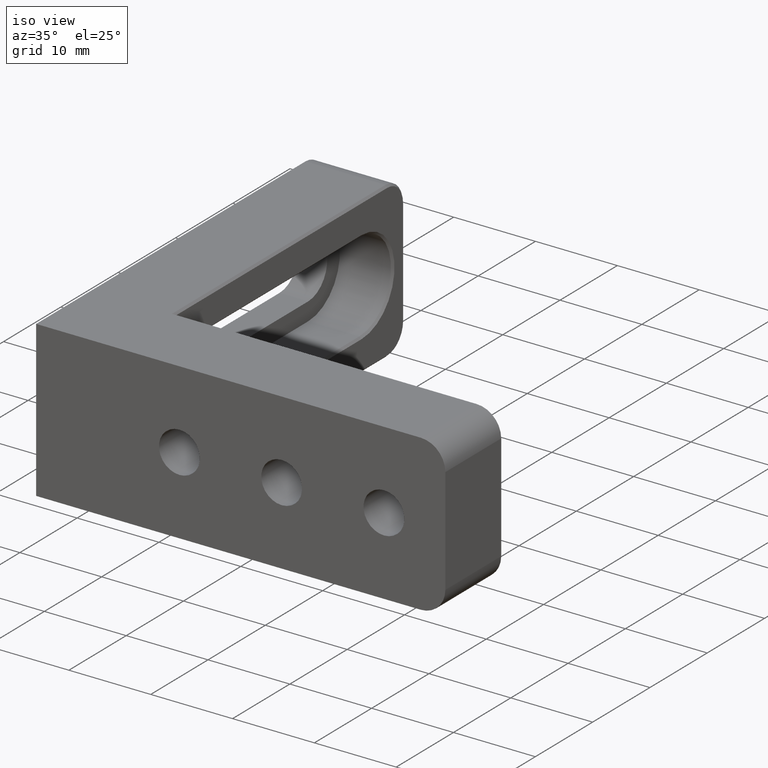
[diagram: clean part render]
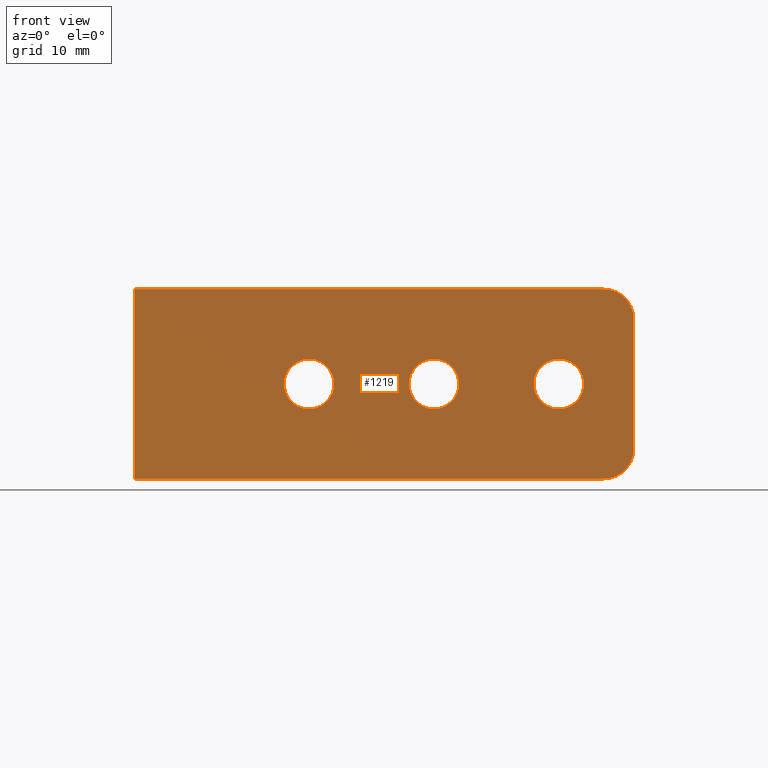
[diagram: tour spotlight — one face highlighted and labeled with its STEP entity id]
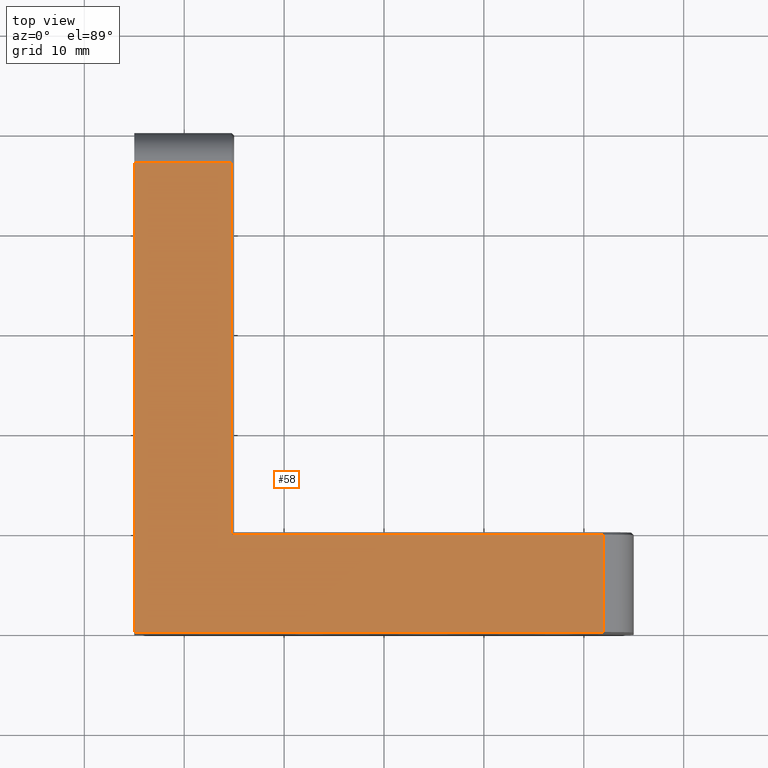
[diagram: tour spotlight — one face highlighted and labeled with its STEP entity id]
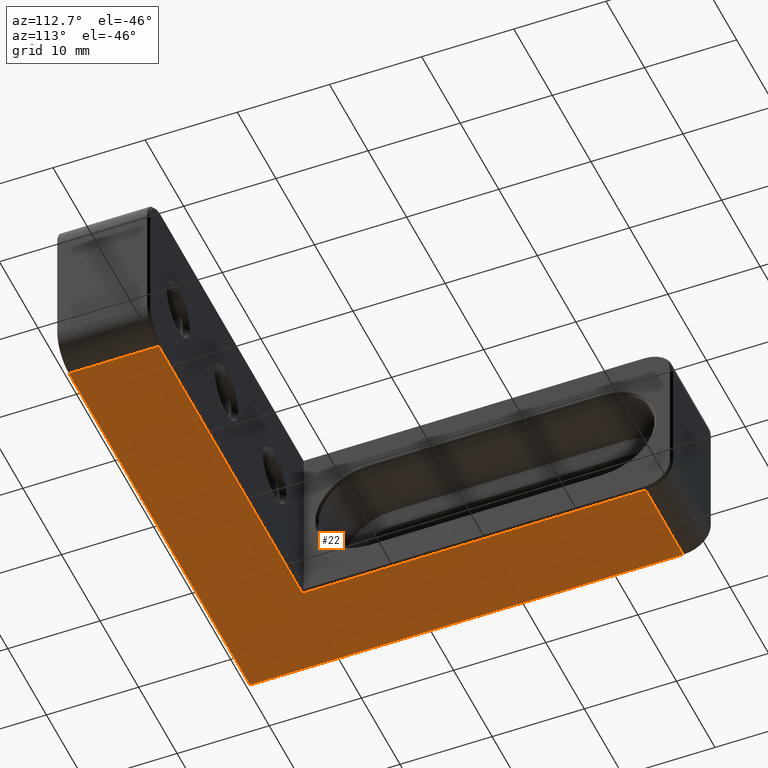
[diagram: tour spotlight — one face highlighted and labeled with its STEP entity id]
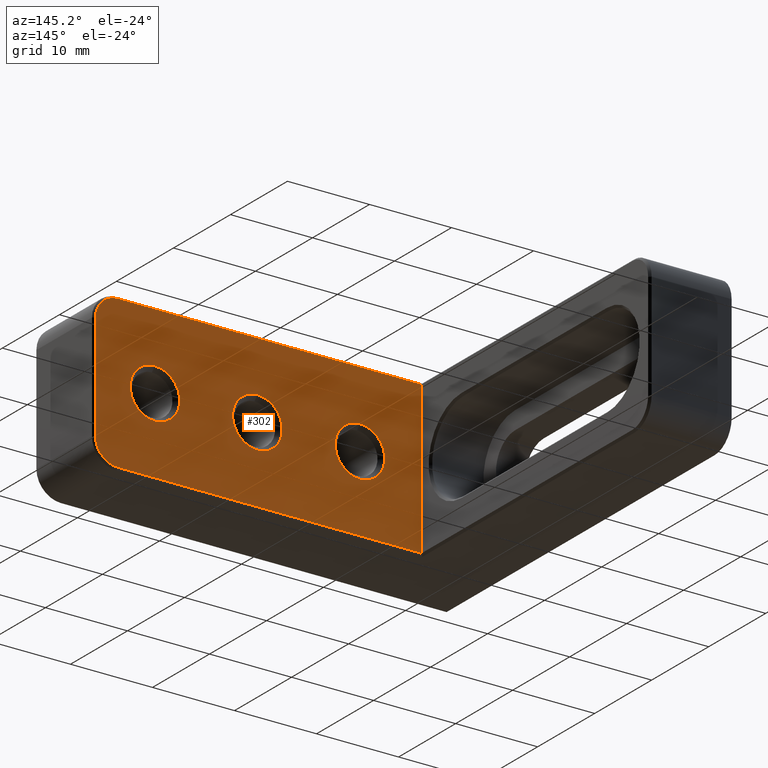
[diagram: tour spotlight — one face highlighted and labeled with its STEP entity id]
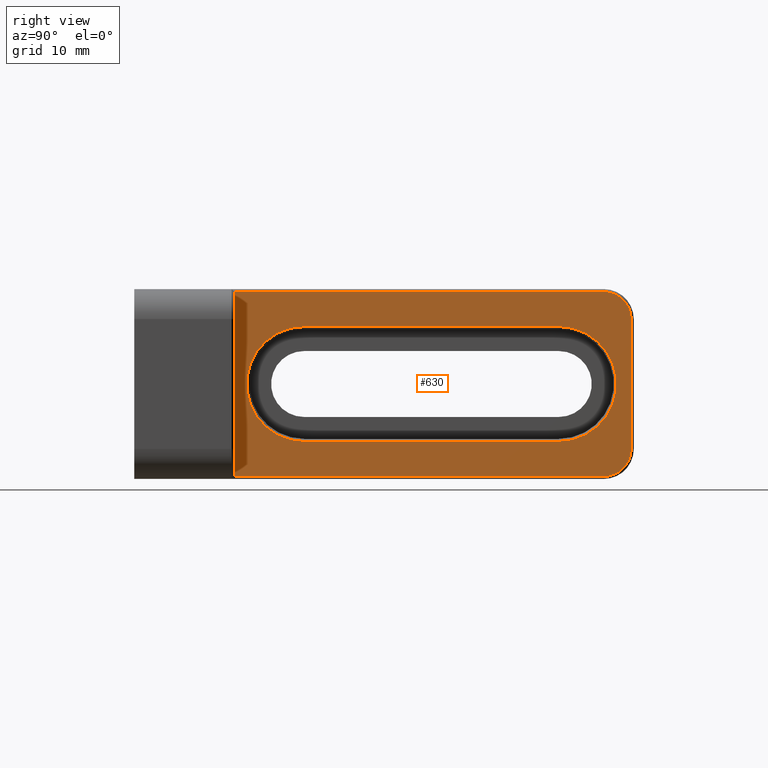
[diagram: tour spotlight — one face highlighted and labeled with its STEP entity id]
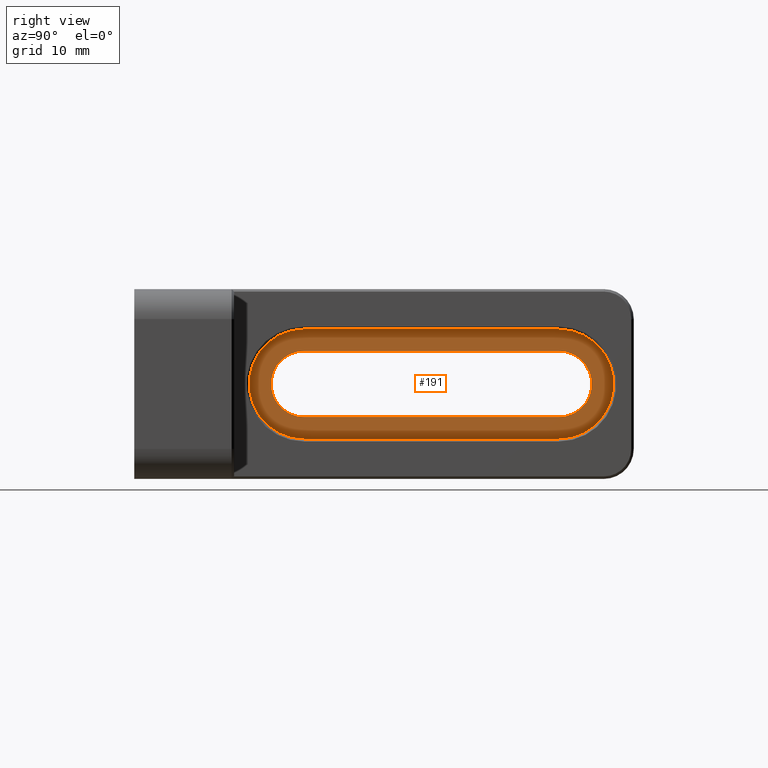
[diagram: tour spotlight — one face highlighted and labeled with its STEP entity id]
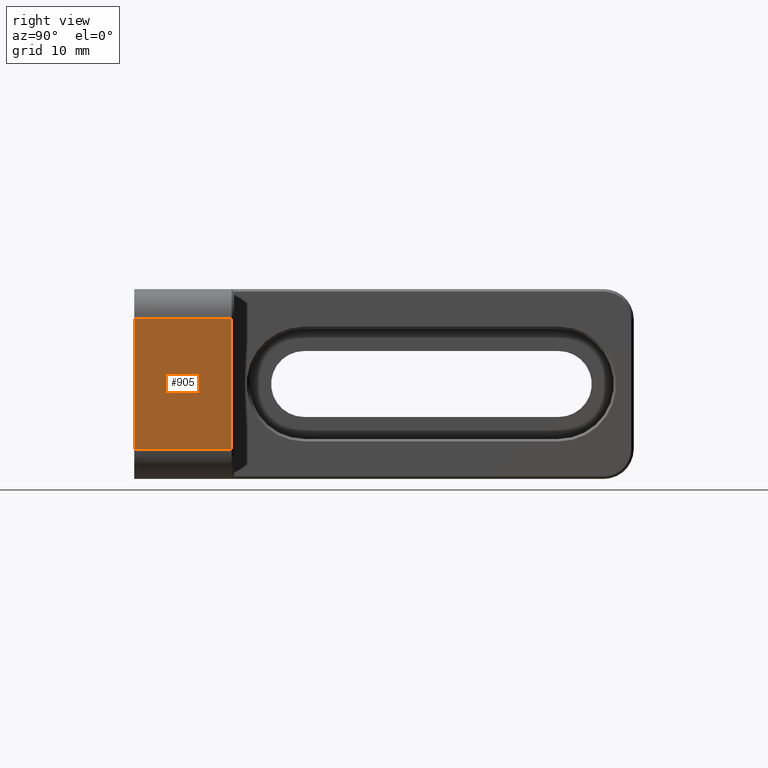
[diagram: tour spotlight — one face highlighted and labeled with its STEP entity id]
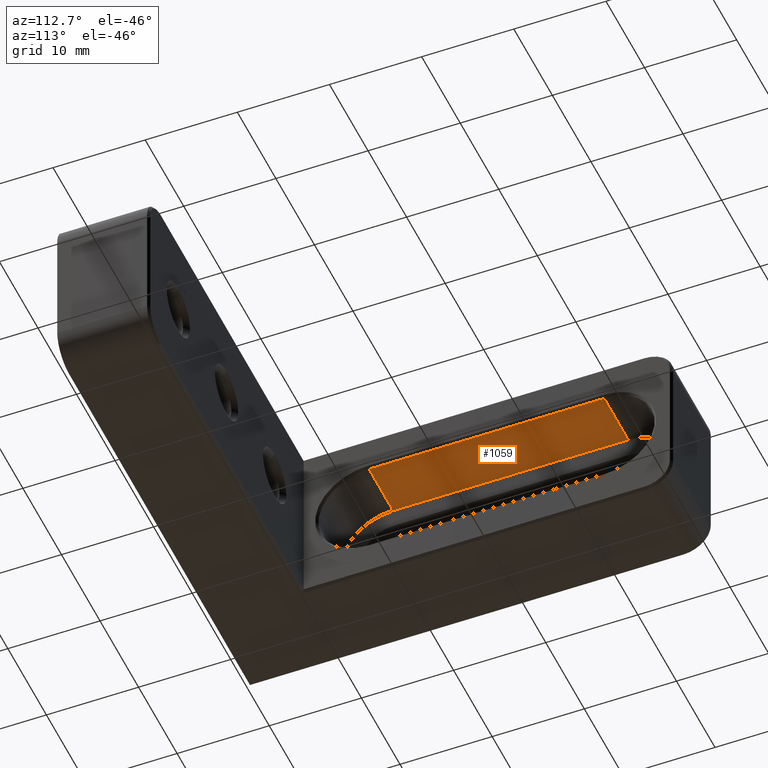
[diagram: tour spotlight — one face highlighted and labeled with its STEP entity id]
A machine part: a face-by-face anatomy tour. The part has 41 B-rep faces; the first image is the clean iso view, then the 8 largest visible faces are spotlighted one at a time (largest first), each with its STEP entity span.

Face 1 — front view, entity #1219. In plain terms, the highlighted planar face has unit normal (0, 1, 0).
Definition (entity closure, byte-faithful):
#7 = ORIENTED_EDGE ( 'NONE', *, *, #248, .T. ) ;
#13 = LINE ( 'NONE', #781, #537 ) ;
#30 = DIRECTION ( 'NONE',  ( 2.312964634635743450E-15, 0.000000000000000000, 1.000000000000000000 ) ) ;
#45 = EDGE_LOOP ( 'NONE', ( #935 ) ) ;
#68 = VERTEX_POINT ( 'NONE', #738 ) ;
#82 = DIRECTION ( 'NONE',  ( -0.000000000000000000, 1.000000000000000000, -0.000000000000000000 ) ) ;
#89 = CARTESIAN_POINT ( 'NONE',  ( -7.499999999999989342, -1.734723475976807094E-15, 0.000000000000000000 ) ) ;
#103 = CIRCLE ( 'NONE', #799, 2.499999999999998668 ) ;
#106 = ORIENTED_EDGE ( 'NONE', *, *, #746, .T. ) ;
#108 = DIRECTION ( 'NONE',  ( -1.000000000000000000, -0.000000000000000000, -0.000000000000000000 ) ) ;
#110 = VERTEX_POINT ( 'NONE', #1193 ) ;
#123 = EDGE_CURVE ( 'NONE', #1017, #1017, #103, .T. ) ;
#134 = CIRCLE ( 'NONE', #803, 2.999999999999999112 ) ;
#139 = AXIS2_PLACEMENT_3D ( 'NONE', #632, #153, #907 ) ;
#153 = DIRECTION ( 'NONE',  ( -0.000000000000000000, -1.000000000000000000, -0.000000000000000000 ) ) ;
#160 = FACE_BOUND ( 'NONE', #691, .T. ) ;
#166 = CARTESIAN_POINT ( 'NONE',  ( -24.99999999999999289, 0.000000000000000000, -9.499999999999998224 ) ) ;
#171 = ORIENTED_EDGE ( 'NONE', *, *, #296, .F. ) ;
#206 = DIRECTION ( 'NONE',  ( -0.000000000000000000, 1.000000000000000000, -0.000000000000000000 ) ) ;
#208 = VERTEX_POINT ( 'NONE', #679 ) ;
#210 = LINE ( 'NONE', #580, #817 ) ;
#213 = CIRCLE ( 'NONE', #895, 2.499999999999998668 ) ;
#232 = LINE ( 'NONE', #601, #480 ) ;
#248 = EDGE_CURVE ( 'NONE', #447, #447, #213, .T. ) ;
#296 = EDGE_CURVE ( 'NONE', #68, #680, #13, .T. ) ;
#329 = ORIENTED_EDGE ( 'NONE', *, *, #336, .F. ) ;
#336 = EDGE_CURVE ( 'NONE', #649, #1119, #232, .T. ) ;
#416 = LINE ( 'NONE', #705, #1159 ) ;
#421 = CARTESIAN_POINT ( 'NONE',  ( 0.000000000000000000, 0.000000000000000000, 0.000000000000000000 ) ) ;
#432 = AXIS2_PLACEMENT_3D ( 'NONE', #1133, #206, #574 ) ;
#447 = VERTEX_POINT ( 'NONE', #1199 ) ;
#451 = EDGE_LOOP ( 'NONE', ( #835, #106, #171, #1018, #539, #329 ) ) ;
#463 = DIRECTION ( 'NONE',  ( 0.000000000000000000, 0.000000000000000000, 1.000000000000000000 ) ) ;
#480 = VECTOR ( 'NONE', #802, 1000.000000000000000 ) ;
#492 = DIRECTION ( 'NONE',  ( 1.000000000000000000, 0.000000000000000000, 0.000000000000000000 ) ) ;
#517 = FACE_OUTER_BOUND ( 'NONE', #451, .T. ) ;
#528 = EDGE_CURVE ( 'NONE', #1119, #110, #416, .T. ) ;
#532 = DIRECTION ( 'NONE',  ( 0.000000000000000000, -0.000000000000000000, 1.000000000000000000 ) ) ;
#537 = VECTOR ( 'NONE', #579, 1000.000000000000000 ) ;
#539 = ORIENTED_EDGE ( 'NONE', *, *, #528, .F. ) ;
#574 = DIRECTION ( 'NONE',  ( 0.000000000000000000, 0.000000000000000000, 1.000000000000000000 ) ) ;
#579 = DIRECTION ( 'NONE',  ( -1.826024711554533420E-16, -0.000000000000000000, -1.000000000000000000 ) ) ;
#580 = CARTESIAN_POINT ( 'NONE',  ( -24.99999999999999289, 0.000000000000000000, -9.499999999999998224 ) ) ;
#601 = CARTESIAN_POINT ( 'NONE',  ( -24.99999999999999289, 0.000000000000000000, -9.499999999999998224 ) ) ;
#607 = CARTESIAN_POINT ( 'NONE',  ( 5.000000000000011546, -1.734723475976807094E-15, 2.499999999999998668 ) ) ;
#615 = FACE_BOUND ( 'NONE', #773, .T. ) ;
#632 = CARTESIAN_POINT ( 'NONE',  ( 22.00000000000000711, 0.000000000000000000, -6.499999999999998224 ) ) ;
#637 = DIRECTION ( 'NONE',  ( 0.000000000000000000, 1.000000000000000000, 0.000000000000000000 ) ) ;
#649 = VERTEX_POINT ( 'NONE', #166 ) ;
#679 = CARTESIAN_POINT ( 'NONE',  ( 22.00000000000000711, 0.000000000000000000, -9.499999999999998224 ) ) ;
#680 = VERTEX_POINT ( 'NONE', #944 ) ;
#684 = ORIENTED_EDGE ( 'NONE', *, *, #123, .T. ) ;
#691 = EDGE_LOOP ( 'NONE', ( #7 ) ) ;
#705 = CARTESIAN_POINT ( 'NONE',  ( -24.99999999999998934, 0.000000000000000000, 9.500000000000005329 ) ) ;
#728 = CARTESIAN_POINT ( 'NONE',  ( 5.000000000000011546, -1.734723475976807094E-15, 0.000000000000000000 ) ) ;
#732 = DIRECTION ( 'NONE',  ( -0.000000000000000000, 1.000000000000000000, -0.000000000000000000 ) ) ;
#738 = CARTESIAN_POINT ( 'NONE',  ( 25.00000000000001066, 0.000000000000000000, 6.500000000000005329 ) ) ;
#746 = EDGE_CURVE ( 'NONE', #208, #680, #982, .T. ) ;
#773 = EDGE_LOOP ( 'NONE', ( #684 ) ) ;
#778 = CARTESIAN_POINT ( 'NONE',  ( -24.99999999999998934, 0.000000000000000000, 9.500000000000005329 ) ) ;
#781 = CARTESIAN_POINT ( 'NONE',  ( 25.00000000000000711, 0.000000000000000000, -9.499999999999998224 ) ) ;
#794 = CARTESIAN_POINT ( 'NONE',  ( 22.00000000000001421, 0.000000000000000000, 6.500000000000005329 ) ) ;
#799 = AXIS2_PLACEMENT_3D ( 'NONE', #728, #732, #1011 ) ;
#802 = DIRECTION ( 'NONE',  ( 1.826024711554533420E-16, 0.000000000000000000, 1.000000000000000000 ) ) ;
#803 = AXIS2_PLACEMENT_3D ( 'NONE', #794, #1070, #30 ) ;
#808 = CIRCLE ( 'NONE', #432, 2.499999999999998668 ) ;
#817 = VECTOR ( 'NONE', #108, 1000.000000000000000 ) ;
#835 = ORIENTED_EDGE ( 'NONE', *, *, #1000, .F. ) ;
#895 = AXIS2_PLACEMENT_3D ( 'NONE', #89, #82, #463 ) ;
#899 = PLANE ( 'NONE',  #1022 ) ;
#907 = DIRECTION ( 'NONE',  ( -1.156482317317871331E-15, 0.000000000000000000, 1.000000000000000000 ) ) ;
#935 = ORIENTED_EDGE ( 'NONE', *, *, #959, .T. ) ;
#944 = CARTESIAN_POINT ( 'NONE',  ( 25.00000000000000711, 0.000000000000000000, -6.499999999999999112 ) ) ;
#959 = EDGE_CURVE ( 'NONE', #988, #988, #808, .T. ) ;
#982 = CIRCLE ( 'NONE', #139, 3.000000000000000000 ) ;
#988 = VERTEX_POINT ( 'NONE', #1097 ) ;
#1000 = EDGE_CURVE ( 'NONE', #208, #649, #210, .T. ) ;
#1011 = DIRECTION ( 'NONE',  ( 0.000000000000000000, 0.000000000000000000, 1.000000000000000000 ) ) ;
#1017 = VERTEX_POINT ( 'NONE', #607 ) ;
#1018 = ORIENTED_EDGE ( 'NONE', *, *, #1154, .T. ) ;
#1022 = AXIS2_PLACEMENT_3D ( 'NONE', #421, #637, #532 ) ;
#1070 = DIRECTION ( 'NONE',  ( -0.000000000000000000, -1.000000000000000000, -0.000000000000000000 ) ) ;
#1097 = CARTESIAN_POINT ( 'NONE',  ( 17.50000000000001066, -1.734723475976807094E-15, 2.499999999999998668 ) ) ;
#1119 = VERTEX_POINT ( 'NONE', #778 ) ;
#1133 = CARTESIAN_POINT ( 'NONE',  ( 17.50000000000001066, -1.734723475976807094E-15, 0.000000000000000000 ) ) ;
#1154 = EDGE_CURVE ( 'NONE', #68, #110, #134, .T. ) ;
#1159 = VECTOR ( 'NONE', #492, 1000.000000000000000 ) ;
#1179 = FACE_BOUND ( 'NONE', #45, .T. ) ;
#1193 = CARTESIAN_POINT ( 'NONE',  ( 22.00000000000001066, 0.000000000000000000, 9.500000000000005329 ) ) ;
#1199 = CARTESIAN_POINT ( 'NONE',  ( -7.499999999999989342, -1.734723475976807094E-15, 2.499999999999998668 ) ) ;
#1219 = ADVANCED_FACE ( 'NONE', ( #160, #615, #1179, #517 ), #899, .F. ) ;

Face 2 — top view, entity #58. In plain terms, the highlighted planar face has unit normal (0, 0, -1).
Definition (entity closure, byte-faithful):
#6 = VECTOR ( 'NONE', #708, 1000.000000000000000 ) ;
#21 = DIRECTION ( 'NONE',  ( -1.000000000000000000, 0.000000000000000000, 0.000000000000000000 ) ) ;
#58 = ADVANCED_FACE ( 'NONE', ( #509 ), #633, .F. ) ;
#84 = VECTOR ( 'NONE', #21, 1000.000000000000000 ) ;
#110 = VERTEX_POINT ( 'NONE', #1193 ) ;
#117 = VERTEX_POINT ( 'NONE', #245 ) ;
#125 = LINE ( 'NONE', #398, #84 ) ;
#193 = ORIENTED_EDGE ( 'NONE', *, *, #523, .T. ) ;
#212 = ORIENTED_EDGE ( 'NONE', *, *, #503, .T. ) ;
#245 = CARTESIAN_POINT ( 'NONE',  ( -15.25000000000000000, 47.00000000000000000, 9.500000000000005329 ) ) ;
#250 = DIRECTION ( 'NONE',  ( -0.000000000000000000, 1.000000000000000000, -0.000000000000000000 ) ) ;
#264 = ORIENTED_EDGE ( 'NONE', *, *, #555, .T. ) ;
#303 = VECTOR ( 'NONE', #766, 1000.000000000000000 ) ;
#319 = CARTESIAN_POINT ( 'NONE',  ( -24.99999999999999289, 47.00000000000000000, 9.500000000000005329 ) ) ;
#341 = LINE ( 'NONE', #726, #955 ) ;
#348 = CARTESIAN_POINT ( 'NONE',  ( -24.99999999999998934, 10.00000000000000000, 9.500000000000005329 ) ) ;
#398 = CARTESIAN_POINT ( 'NONE',  ( -14.99999999999999289, 9.750000000000000000, 9.500000000000005329 ) ) ;
#416 = LINE ( 'NONE', #705, #1159 ) ;
#419 = DIRECTION ( 'NONE',  ( -1.000000000000000000, -0.000000000000000000, -0.000000000000000000 ) ) ;
#450 = DIRECTION ( 'NONE',  ( -1.000000000000000000, 0.000000000000000000, -0.000000000000000000 ) ) ;
#472 = ORIENTED_EDGE ( 'NONE', *, *, #528, .T. ) ;
#478 = AXIS2_PLACEMENT_3D ( 'NONE', #348, #749, #450 ) ;
#484 = CARTESIAN_POINT ( 'NONE',  ( 22.00000000000001066, 9.750000000000000000, 9.500000000000005329 ) ) ;
#492 = DIRECTION ( 'NONE',  ( 1.000000000000000000, 0.000000000000000000, 0.000000000000000000 ) ) ;
#498 = VECTOR ( 'NONE', #419, 1000.000000000000000 ) ;
#503 = EDGE_CURVE ( 'NONE', #941, #117, #547, .T. ) ;
#509 = FACE_OUTER_BOUND ( 'NONE', #795, .T. ) ;
#523 = EDGE_CURVE ( 'NONE', #110, #1004, #341, .T. ) ;
#528 = EDGE_CURVE ( 'NONE', #1119, #110, #416, .T. ) ;
#547 = LINE ( 'NONE', #1030, #303 ) ;
#555 = EDGE_CURVE ( 'NONE', #1004, #941, #125, .T. ) ;
#561 = ORIENTED_EDGE ( 'NONE', *, *, #1224, .T. ) ;
#592 = EDGE_CURVE ( 'NONE', #117, #845, #707, .T. ) ;
#622 = CARTESIAN_POINT ( 'NONE',  ( -24.99999999999998934, 10.00000000000000000, 9.500000000000005329 ) ) ;
#623 = CARTESIAN_POINT ( 'NONE',  ( -24.99999999999998934, 47.00000000000000000, 9.500000000000005329 ) ) ;
#633 = PLANE ( 'NONE',  #478 ) ;
#705 = CARTESIAN_POINT ( 'NONE',  ( -24.99999999999998934, 0.000000000000000000, 9.500000000000005329 ) ) ;
#707 = LINE ( 'NONE', #319, #498 ) ;
#708 = DIRECTION ( 'NONE',  ( -0.000000000000000000, -1.000000000000000000, -0.000000000000000000 ) ) ;
#726 = CARTESIAN_POINT ( 'NONE',  ( 22.00000000000001066, 10.00000000000000000, 9.500000000000005329 ) ) ;
#749 = DIRECTION ( 'NONE',  ( 0.000000000000000000, 0.000000000000000000, -1.000000000000000000 ) ) ;
#766 = DIRECTION ( 'NONE',  ( 0.000000000000000000, 1.000000000000000000, 0.000000000000000000 ) ) ;
#778 = CARTESIAN_POINT ( 'NONE',  ( -24.99999999999998934, 0.000000000000000000, 9.500000000000005329 ) ) ;
#795 = EDGE_LOOP ( 'NONE', ( #193, #264, #212, #1206, #561, #472 ) ) ;
#845 = VERTEX_POINT ( 'NONE', #623 ) ;
#941 = VERTEX_POINT ( 'NONE', #950 ) ;
#950 = CARTESIAN_POINT ( 'NONE',  ( -15.25000000000000000, 9.750000000000000000, 9.500000000000005329 ) ) ;
#955 = VECTOR ( 'NONE', #250, 1000.000000000000000 ) ;
#1004 = VERTEX_POINT ( 'NONE', #484 ) ;
#1030 = CARTESIAN_POINT ( 'NONE',  ( -15.25000000000000000, 10.00000000000000000, 9.500000000000005329 ) ) ;
#1119 = VERTEX_POINT ( 'NONE', #778 ) ;
#1159 = VECTOR ( 'NONE', #492, 1000.000000000000000 ) ;
#1193 = CARTESIAN_POINT ( 'NONE',  ( 22.00000000000001066, 0.000000000000000000, 9.500000000000005329 ) ) ;
#1194 = LINE ( 'NONE', #622, #6 ) ;
#1206 = ORIENTED_EDGE ( 'NONE', *, *, #592, .T. ) ;
#1224 = EDGE_CURVE ( 'NONE', #845, #1119, #1194, .T. ) ;

Face 3 — auxiliary view, entity #22. In plain terms, the highlighted planar face has unit normal (0, 0, 1).
Definition (entity closure, byte-faithful):
#22 = ADVANCED_FACE ( 'NONE', ( #1024 ), #999, .F. ) ;
#53 = CARTESIAN_POINT ( 'NONE',  ( -15.25000000000000178, 47.00000000000000000, -9.499999999999998224 ) ) ;
#55 = VERTEX_POINT ( 'NONE', #138 ) ;
#71 = ORIENTED_EDGE ( 'NONE', *, *, #519, .T. ) ;
#93 = VECTOR ( 'NONE', #965, 1000.000000000000000 ) ;
#108 = DIRECTION ( 'NONE',  ( -1.000000000000000000, -0.000000000000000000, -0.000000000000000000 ) ) ;
#138 = CARTESIAN_POINT ( 'NONE',  ( 22.00000000000000711, 9.750000000000000000, -9.499999999999998224 ) ) ;
#146 = ORIENTED_EDGE ( 'NONE', *, *, #791, .T. ) ;
#166 = CARTESIAN_POINT ( 'NONE',  ( -24.99999999999999289, 0.000000000000000000, -9.499999999999998224 ) ) ;
#182 = DIRECTION ( 'NONE',  ( 1.000000000000000000, 0.000000000000000000, -0.000000000000000000 ) ) ;
#208 = VERTEX_POINT ( 'NONE', #679 ) ;
#210 = LINE ( 'NONE', #580, #817 ) ;
#236 = CARTESIAN_POINT ( 'NONE',  ( 22.00000000000000711, 10.00000000000000000, -9.499999999999998224 ) ) ;
#256 = LINE ( 'NONE', #508, #992 ) ;
#260 = DIRECTION ( 'NONE',  ( -0.000000000000000000, -1.000000000000000000, -0.000000000000000000 ) ) ;
#263 = EDGE_CURVE ( 'NONE', #1230, #649, #1222, .T. ) ;
#266 = ORIENTED_EDGE ( 'NONE', *, *, #263, .F. ) ;
#267 = VECTOR ( 'NONE', #320, 1000.000000000000000 ) ;
#301 = VECTOR ( 'NONE', #260, 1000.000000000000000 ) ;
#320 = DIRECTION ( 'NONE',  ( 0.000000000000000000, -1.000000000000000000, 0.000000000000000000 ) ) ;
#322 = DIRECTION ( 'NONE',  ( 1.000000000000000000, 0.000000000000000000, 0.000000000000000000 ) ) ;
#330 = DIRECTION ( 'NONE',  ( 1.000000000000000000, -0.000000000000000000, -0.000000000000000000 ) ) ;
#394 = ORIENTED_EDGE ( 'NONE', *, *, #1000, .T. ) ;
#438 = ORIENTED_EDGE ( 'NONE', *, *, #1141, .T. ) ;
#458 = DIRECTION ( 'NONE',  ( 0.000000000000000000, 0.000000000000000000, 1.000000000000000000 ) ) ;
#508 = CARTESIAN_POINT ( 'NONE',  ( 22.00000000000000711, 9.750000000000000000, -9.499999999999998224 ) ) ;
#519 = EDGE_CURVE ( 'NONE', #942, #55, #256, .T. ) ;
#546 = CARTESIAN_POINT ( 'NONE',  ( -14.99999999999999467, 47.00000000000000000, -9.499999999999998224 ) ) ;
#552 = CARTESIAN_POINT ( 'NONE',  ( -15.25000000000000178, 9.750000000000000000, -9.499999999999998224 ) ) ;
#580 = CARTESIAN_POINT ( 'NONE',  ( -24.99999999999999289, 0.000000000000000000, -9.499999999999998224 ) ) ;
#624 = VECTOR ( 'NONE', #330, 1000.000000000000000 ) ;
#646 = ORIENTED_EDGE ( 'NONE', *, *, #1074, .T. ) ;
#649 = VERTEX_POINT ( 'NONE', #166 ) ;
#658 = AXIS2_PLACEMENT_3D ( 'NONE', #837, #458, #182 ) ;
#663 = CARTESIAN_POINT ( 'NONE',  ( -24.99999999999999289, 10.00000000000000000, -9.499999999999998224 ) ) ;
#679 = CARTESIAN_POINT ( 'NONE',  ( 22.00000000000000711, 0.000000000000000000, -9.499999999999998224 ) ) ;
#702 = CARTESIAN_POINT ( 'NONE',  ( -15.25000000000000178, 10.00000000000000000, -9.499999999999998224 ) ) ;
#725 = LINE ( 'NONE', #546, #624 ) ;
#791 = EDGE_CURVE ( 'NONE', #1230, #801, #725, .T. ) ;
#801 = VERTEX_POINT ( 'NONE', #53 ) ;
#817 = VECTOR ( 'NONE', #108, 1000.000000000000000 ) ;
#837 = CARTESIAN_POINT ( 'NONE',  ( -24.99999999999999289, 10.00000000000000000, -9.499999999999998224 ) ) ;
#942 = VERTEX_POINT ( 'NONE', #552 ) ;
#965 = DIRECTION ( 'NONE',  ( 0.000000000000000000, -1.000000000000000000, 0.000000000000000000 ) ) ;
#992 = VECTOR ( 'NONE', #322, 1000.000000000000000 ) ;
#999 = PLANE ( 'NONE',  #658 ) ;
#1000 = EDGE_CURVE ( 'NONE', #208, #649, #210, .T. ) ;
#1024 = FACE_OUTER_BOUND ( 'NONE', #1031, .T. ) ;
#1031 = EDGE_LOOP ( 'NONE', ( #646, #71, #438, #394, #266, #146 ) ) ;
#1074 = EDGE_CURVE ( 'NONE', #801, #942, #1165, .T. ) ;
#1104 = CARTESIAN_POINT ( 'NONE',  ( -24.99999999999999289, 47.00000000000000000, -9.499999999999998224 ) ) ;
#1141 = EDGE_CURVE ( 'NONE', #55, #208, #1153, .T. ) ;
#1153 = LINE ( 'NONE', #236, #267 ) ;
#1165 = LINE ( 'NONE', #702, #93 ) ;
#1222 = LINE ( 'NONE', #663, #301 ) ;
#1230 = VERTEX_POINT ( 'NONE', #1104 ) ;

Face 4 — auxiliary view, entity #302. In plain terms, the highlighted planar face has unit normal (0, 1, 0).
Definition (entity closure, byte-faithful):
#4 = CARTESIAN_POINT ( 'NONE',  ( 0.000000000000000000, 10.00000000000000000, 0.000000000000000000 ) ) ;
#12 = LINE ( 'NONE', #297, #400 ) ;
#32 = DIRECTION ( 'NONE',  ( 1.000000000000000000, 0.000000000000000000, 0.000000000000000000 ) ) ;
#39 = AXIS2_PLACEMENT_3D ( 'NONE', #1207, #351, #161 ) ;
#54 = DIRECTION ( 'NONE',  ( 0.000000000000000000, 0.000000000000000000, 1.000000000000000000 ) ) ;
#59 = VERTEX_POINT ( 'NONE', #427 ) ;
#60 = ORIENTED_EDGE ( 'NONE', *, *, #972, .T. ) ;
#62 = EDGE_CURVE ( 'NONE', #59, #59, #513, .T. ) ;
#111 = EDGE_LOOP ( 'NONE', ( #1204, #321, #587, #482, #60, #1158 ) ) ;
#115 = EDGE_LOOP ( 'NONE', ( #122 ) ) ;
#116 = CARTESIAN_POINT ( 'NONE',  ( 17.50000000000001066, 10.00000000000000178, 0.000000000000000000 ) ) ;
#118 = DIRECTION ( 'NONE',  ( -9.130123557772667102E-17, -0.000000000000000000, -1.000000000000000000 ) ) ;
#120 = FACE_BOUND ( 'NONE', #481, .T. ) ;
#122 = ORIENTED_EDGE ( 'NONE', *, *, #62, .F. ) ;
#136 = CARTESIAN_POINT ( 'NONE',  ( 24.75000000000000711, 10.00000000000000000, -6.499999999999999112 ) ) ;
#149 = CARTESIAN_POINT ( 'NONE',  ( -14.99999999999999289, 10.00000000000000000, 9.249999999999998224 ) ) ;
#161 = DIRECTION ( 'NONE',  ( 0.000000000000000000, 0.000000000000000000, 1.000000000000000000 ) ) ;
#175 = EDGE_CURVE ( 'NONE', #434, #434, #914, .T. ) ;
#214 = AXIS2_PLACEMENT_3D ( 'NONE', #1139, #947, #673 ) ;
#220 = FACE_BOUND ( 'NONE', #115, .T. ) ;
#221 = CARTESIAN_POINT ( 'NONE',  ( 22.00000000000001066, 10.00000000000000000, 9.250000000000005329 ) ) ;
#227 = DIRECTION ( 'NONE',  ( -1.000000000000000000, 0.000000000000000000, 0.000000000000000000 ) ) ;
#233 = CARTESIAN_POINT ( 'NONE',  ( 22.00000000000000711, 10.00000000000000000, -9.249999999999996447 ) ) ;
#238 = VERTEX_POINT ( 'NONE', #715 ) ;
#242 = VECTOR ( 'NONE', #227, 1000.000000000000000 ) ;
#292 = FACE_BOUND ( 'NONE', #1046, .T. ) ;
#297 = CARTESIAN_POINT ( 'NONE',  ( -14.99999999999999467, 10.00000000000000000, -9.499999999999998224 ) ) ;
#302 = ADVANCED_FACE ( 'NONE', ( #1160, #220, #120, #292 ), #956, .T. ) ;
#307 = EDGE_CURVE ( 'NONE', #1192, #417, #384, .T. ) ;
#321 = ORIENTED_EDGE ( 'NONE', *, *, #525, .T. ) ;
#338 = CIRCLE ( 'NONE', #39, 2.749999999999999112 ) ;
#344 = EDGE_CURVE ( 'NONE', #666, #417, #12, .T. ) ;
#351 = DIRECTION ( 'NONE',  ( 0.000000000000000000, 1.000000000000000000, 0.000000000000000000 ) ) ;
#353 = CARTESIAN_POINT ( 'NONE',  ( -7.499999999999989342, 10.00000000000000178, 0.000000000000000000 ) ) ;
#366 = CARTESIAN_POINT ( 'NONE',  ( -14.99999999999999467, 10.00000000000000000, -9.249999999999991118 ) ) ;
#384 = LINE ( 'NONE', #975, #242 ) ;
#396 = VECTOR ( 'NONE', #893, 1000.000000000000000 ) ;
#399 = EDGE_CURVE ( 'NONE', #1150, #920, #338, .T. ) ;
#400 = VECTOR ( 'NONE', #118, 1000.000000000000000 ) ;
#417 = VERTEX_POINT ( 'NONE', #366 ) ;
#424 = DIRECTION ( 'NONE',  ( -0.000000000000000000, 1.000000000000000000, -0.000000000000000000 ) ) ;
#427 = CARTESIAN_POINT ( 'NONE',  ( -7.499999999999989342, 10.00000000000000178, 3.024999999999999911 ) ) ;
#434 = VERTEX_POINT ( 'NONE', #807 ) ;
#464 = VECTOR ( 'NONE', #32, 1000.000000000000000 ) ;
#479 = CARTESIAN_POINT ( 'NONE',  ( 22.00000000000000711, 10.00000000000000000, -6.499999999999998224 ) ) ;
#481 = EDGE_LOOP ( 'NONE', ( #564 ) ) ;
#482 = ORIENTED_EDGE ( 'NONE', *, *, #616, .T. ) ;
#510 = EDGE_CURVE ( 'NONE', #238, #238, #698, .T. ) ;
#513 = CIRCLE ( 'NONE', #1072, 3.024999999999999911 ) ;
#525 = EDGE_CURVE ( 'NONE', #666, #1150, #1008, .T. ) ;
#534 = CARTESIAN_POINT ( 'NONE',  ( 22.00000000000001066, 10.00000000000000000, 9.250000000000005329 ) ) ;
#557 = AXIS2_PLACEMENT_3D ( 'NONE', #4, #694, #970 ) ;
#564 = ORIENTED_EDGE ( 'NONE', *, *, #510, .F. ) ;
#587 = ORIENTED_EDGE ( 'NONE', *, *, #399, .T. ) ;
#616 = EDGE_CURVE ( 'NONE', #920, #939, #978, .T. ) ;
#666 = VERTEX_POINT ( 'NONE', #149 ) ;
#673 = DIRECTION ( 'NONE',  ( 0.000000000000000000, 0.000000000000000000, 1.000000000000000000 ) ) ;
#694 = DIRECTION ( 'NONE',  ( 0.000000000000000000, 1.000000000000000000, 0.000000000000000000 ) ) ;
#698 = CIRCLE ( 'NONE', #214, 3.024999999999999911 ) ;
#715 = CARTESIAN_POINT ( 'NONE',  ( 5.000000000000011546, 10.00000000000000178, 3.024999999999999911 ) ) ;
#731 = ORIENTED_EDGE ( 'NONE', *, *, #175, .F. ) ;
#760 = CIRCLE ( 'NONE', #1067, 2.749999999999998224 ) ;
#807 = CARTESIAN_POINT ( 'NONE',  ( 17.50000000000001066, 10.00000000000000178, 3.024999999999999911 ) ) ;
#864 = DIRECTION ( 'NONE',  ( 0.000000000000000000, 1.000000000000000000, 0.000000000000000000 ) ) ;
#871 = DIRECTION ( 'NONE',  ( 0.000000000000000000, 0.000000000000000000, 1.000000000000000000 ) ) ;
#893 = DIRECTION ( 'NONE',  ( -1.826024711554533420E-16, 0.000000000000000000, -1.000000000000000000 ) ) ;
#914 = CIRCLE ( 'NONE', #1122, 3.024999999999999911 ) ;
#920 = VERTEX_POINT ( 'NONE', #1138 ) ;
#939 = VERTEX_POINT ( 'NONE', #1045 ) ;
#947 = DIRECTION ( 'NONE',  ( -0.000000000000000000, 1.000000000000000000, -0.000000000000000000 ) ) ;
#956 = PLANE ( 'NONE',  #557 ) ;
#970 = DIRECTION ( 'NONE',  ( 0.000000000000000000, -0.000000000000000000, 1.000000000000000000 ) ) ;
#972 = EDGE_CURVE ( 'NONE', #939, #1192, #760, .T. ) ;
#975 = CARTESIAN_POINT ( 'NONE',  ( -14.99999999999999467, 10.00000000000000000, -9.249999999999998224 ) ) ;
#978 = LINE ( 'NONE', #136, #396 ) ;
#986 = DIRECTION ( 'NONE',  ( 0.000000000000000000, 0.000000000000000000, 1.000000000000000000 ) ) ;
#997 = DIRECTION ( 'NONE',  ( -0.000000000000000000, 1.000000000000000000, -0.000000000000000000 ) ) ;
#1008 = LINE ( 'NONE', #534, #464 ) ;
#1045 = CARTESIAN_POINT ( 'NONE',  ( 24.75000000000000711, 10.00000000000000000, -6.499999999999999112 ) ) ;
#1046 = EDGE_LOOP ( 'NONE', ( #731 ) ) ;
#1067 = AXIS2_PLACEMENT_3D ( 'NONE', #479, #864, #871 ) ;
#1072 = AXIS2_PLACEMENT_3D ( 'NONE', #353, #997, #54 ) ;
#1122 = AXIS2_PLACEMENT_3D ( 'NONE', #116, #424, #986 ) ;
#1138 = CARTESIAN_POINT ( 'NONE',  ( 24.75000000000001066, 10.00000000000000000, 6.500000000000005329 ) ) ;
#1139 = CARTESIAN_POINT ( 'NONE',  ( 5.000000000000011546, 10.00000000000000178, 0.000000000000000000 ) ) ;
#1150 = VERTEX_POINT ( 'NONE', #221 ) ;
#1158 = ORIENTED_EDGE ( 'NONE', *, *, #307, .T. ) ;
#1160 = FACE_OUTER_BOUND ( 'NONE', #111, .T. ) ;
#1192 = VERTEX_POINT ( 'NONE', #233 ) ;
#1204 = ORIENTED_EDGE ( 'NONE', *, *, #344, .F. ) ;
#1207 = CARTESIAN_POINT ( 'NONE',  ( 22.00000000000001421, 10.00000000000000000, 6.500000000000005329 ) ) ;

Face 5 — right view, entity #630. In plain terms, the highlighted planar face has unit normal (-1, 0, 0).
Definition (entity closure, byte-faithful):
#12 = LINE ( 'NONE', #297, #400 ) ;
#15 = AXIS2_PLACEMENT_3D ( 'NONE', #819, #343, #1109 ) ;
#24 = LINE ( 'NONE', #40, #300 ) ;
#25 = LINE ( 'NONE', #1069, #784 ) ;
#28 = PLANE ( 'NONE',  #15 ) ;
#36 = FACE_BOUND ( 'NONE', #618, .T. ) ;
#40 = CARTESIAN_POINT ( 'NONE',  ( -14.99999999999999467, 50.00000000000000000, -9.249999999999991118 ) ) ;
#85 = ORIENTED_EDGE ( 'NONE', *, *, #344, .T. ) ;
#90 = EDGE_CURVE ( 'NONE', #461, #666, #549, .T. ) ;
#95 = FACE_OUTER_BOUND ( 'NONE', #1128, .T. ) ;
#97 = ORIENTED_EDGE ( 'NONE', *, *, #882, .T. ) ;
#118 = DIRECTION ( 'NONE',  ( -9.130123557772667102E-17, -0.000000000000000000, -1.000000000000000000 ) ) ;
#124 = VECTOR ( 'NONE', #805, 1000.000000000000000 ) ;
#149 = CARTESIAN_POINT ( 'NONE',  ( -14.99999999999999289, 10.00000000000000000, 9.249999999999998224 ) ) ;
#185 = AXIS2_PLACEMENT_3D ( 'NONE', #196, #1144, #669 ) ;
#187 = CARTESIAN_POINT ( 'NONE',  ( -14.99999999999999289, 47.00000000000000000, 9.249999999999998224 ) ) ;
#194 = AXIS2_PLACEMENT_3D ( 'NONE', #1155, #405, #1166 ) ;
#196 = CARTESIAN_POINT ( 'NONE',  ( -14.99999999999999467, 17.00000000000000355, -1.753330804159850798E-15 ) ) ;
#235 = AXIS2_PLACEMENT_3D ( 'NONE', #299, #1175, #305 ) ;
#262 = DIRECTION ( 'NONE',  ( 9.130123557772667102E-17, 0.000000000000000000, 1.000000000000000000 ) ) ;
#273 = EDGE_CURVE ( 'NONE', #1016, #461, #989, .T. ) ;
#282 = EDGE_CURVE ( 'NONE', #328, #810, #25, .T. ) ;
#297 = CARTESIAN_POINT ( 'NONE',  ( -14.99999999999999467, 10.00000000000000000, -9.499999999999998224 ) ) ;
#299 = CARTESIAN_POINT ( 'NONE',  ( -14.99999999999999467, 47.00000000000000000, -6.499999999999998224 ) ) ;
#300 = VECTOR ( 'NONE', #983, 1000.000000000000000 ) ;
#305 = DIRECTION ( 'NONE',  ( 0.000000000000000000, 0.000000000000000000, 1.000000000000000000 ) ) ;
#328 = VERTEX_POINT ( 'NONE', #501 ) ;
#343 = DIRECTION ( 'NONE',  ( -1.000000000000000000, 0.000000000000000000, 9.130123557772667102E-17 ) ) ;
#344 = EDGE_CURVE ( 'NONE', #666, #417, #12, .T. ) ;
#350 = ORIENTED_EDGE ( 'NONE', *, *, #932, .T. ) ;
#357 = VERTEX_POINT ( 'NONE', #879 ) ;
#366 = CARTESIAN_POINT ( 'NONE',  ( -14.99999999999999467, 10.00000000000000000, -9.249999999999991118 ) ) ;
#400 = VECTOR ( 'NONE', #118, 1000.000000000000000 ) ;
#403 = DIRECTION ( 'NONE',  ( 1.000000000000000000, -0.000000000000000000, -9.130123557772667102E-17 ) ) ;
#405 = DIRECTION ( 'NONE',  ( -1.000000000000000000, 0.000000000000000000, 9.130123557772667102E-17 ) ) ;
#411 = EDGE_CURVE ( 'NONE', #487, #1172, #723, .T. ) ;
#417 = VERTEX_POINT ( 'NONE', #366 ) ;
#429 = CARTESIAN_POINT ( 'NONE',  ( -14.99999999999999467, 50.00000000000000000, -5.749999999999997335 ) ) ;
#436 = CARTESIAN_POINT ( 'NONE',  ( -14.99999999999999289, 42.50000000000000000, 5.750000000000000000 ) ) ;
#461 = VERTEX_POINT ( 'NONE', #187 ) ;
#487 = VERTEX_POINT ( 'NONE', #844 ) ;
#501 = CARTESIAN_POINT ( 'NONE',  ( -14.99999999999999289, 17.00000000000000355, 5.749999999999996447 ) ) ;
#541 = ORIENTED_EDGE ( 'NONE', *, *, #282, .T. ) ;
#549 = LINE ( 'NONE', #1111, #124 ) ;
#559 = EDGE_CURVE ( 'NONE', #810, #487, #833, .T. ) ;
#567 = EDGE_CURVE ( 'NONE', #417, #758, #24, .T. ) ;
#581 = AXIS2_PLACEMENT_3D ( 'NONE', #869, #403, #588 ) ;
#588 = DIRECTION ( 'NONE',  ( 0.000000000000000000, 0.000000000000000000, 1.000000000000000000 ) ) ;
#618 = EDGE_LOOP ( 'NONE', ( #350, #541, #769, #872 ) ) ;
#630 = ADVANCED_FACE ( 'NONE', ( #36, #95 ), #28, .F. ) ;
#666 = VERTEX_POINT ( 'NONE', #149 ) ;
#669 = DIRECTION ( 'NONE',  ( 0.000000000000000000, 0.000000000000000000, 1.000000000000000000 ) ) ;
#709 = CIRCLE ( 'NONE', #185, 5.749999999999998224 ) ;
#723 = LINE ( 'NONE', #429, #770 ) ;
#730 = CARTESIAN_POINT ( 'NONE',  ( -14.99999999999999467, 47.00000000000000000, -9.249999999999994671 ) ) ;
#736 = LINE ( 'NONE', #1121, #855 ) ;
#758 = VERTEX_POINT ( 'NONE', #730 ) ;
#769 = ORIENTED_EDGE ( 'NONE', *, *, #559, .T. ) ;
#770 = VECTOR ( 'NONE', #1113, 1000.000000000000000 ) ;
#784 = VECTOR ( 'NONE', #964, 1000.000000000000000 ) ;
#805 = DIRECTION ( 'NONE',  ( 0.000000000000000000, -1.000000000000000000, 0.000000000000000000 ) ) ;
#810 = VERTEX_POINT ( 'NONE', #436 ) ;
#819 = CARTESIAN_POINT ( 'NONE',  ( -14.99999999999999467, 50.00000000000000000, -9.499999999999998224 ) ) ;
#827 = ORIENTED_EDGE ( 'NONE', *, *, #273, .T. ) ;
#833 = CIRCLE ( 'NONE', #194, 5.749999999999998224 ) ;
#844 = CARTESIAN_POINT ( 'NONE',  ( -14.99999999999999467, 42.50000000000000000, -5.749999999999998224 ) ) ;
#855 = VECTOR ( 'NONE', #262, 1000.000000000000000 ) ;
#869 = CARTESIAN_POINT ( 'NONE',  ( -14.99999999999999289, 47.00000000000000000, 6.500000000000005329 ) ) ;
#872 = ORIENTED_EDGE ( 'NONE', *, *, #411, .T. ) ;
#879 = CARTESIAN_POINT ( 'NONE',  ( -14.99999999999999467, 49.74999999999999289, -6.499999999999998224 ) ) ;
#882 = EDGE_CURVE ( 'NONE', #357, #1016, #736, .T. ) ;
#932 = EDGE_CURVE ( 'NONE', #1172, #328, #709, .T. ) ;
#958 = ORIENTED_EDGE ( 'NONE', *, *, #90, .T. ) ;
#964 = DIRECTION ( 'NONE',  ( 1.242214876410755791E-32, 1.000000000000000000, 1.360567432138672328E-16 ) ) ;
#971 = CARTESIAN_POINT ( 'NONE',  ( -14.99999999999999467, 17.00000000000000355, -5.750000000000001776 ) ) ;
#983 = DIRECTION ( 'NONE',  ( 0.000000000000000000, 1.000000000000000000, 0.000000000000000000 ) ) ;
#989 = CIRCLE ( 'NONE', #581, 2.749999999999992895 ) ;
#1016 = VERTEX_POINT ( 'NONE', #1127 ) ;
#1023 = ORIENTED_EDGE ( 'NONE', *, *, #1105, .T. ) ;
#1069 = CARTESIAN_POINT ( 'NONE',  ( -14.99999999999999289, 50.00000000000000000, 5.750000000000001776 ) ) ;
#1105 = EDGE_CURVE ( 'NONE', #758, #357, #1196, .T. ) ;
#1109 = DIRECTION ( 'NONE',  ( 9.130123557772667102E-17, 0.000000000000000000, 1.000000000000000000 ) ) ;
#1111 = CARTESIAN_POINT ( 'NONE',  ( -14.99999999999999289, 50.00000000000000000, 9.249999999999998224 ) ) ;
#1113 = DIRECTION ( 'NONE',  ( -1.242214876410755791E-32, -1.000000000000000000, -1.360567432138672328E-16 ) ) ;
#1121 = CARTESIAN_POINT ( 'NONE',  ( -14.99999999999999289, 49.74999999999999289, 6.500000000000005329 ) ) ;
#1127 = CARTESIAN_POINT ( 'NONE',  ( -14.99999999999999289, 49.74999999999999289, 6.500000000000005329 ) ) ;
#1128 = EDGE_LOOP ( 'NONE', ( #85, #1187, #1023, #97, #827, #958 ) ) ;
#1144 = DIRECTION ( 'NONE',  ( -1.000000000000000000, 0.000000000000000000, 9.130123557772667102E-17 ) ) ;
#1155 = CARTESIAN_POINT ( 'NONE',  ( -14.99999999999999467, 42.50000000000000000, 1.369518533665899819E-15 ) ) ;
#1166 = DIRECTION ( 'NONE',  ( 0.000000000000000000, 0.000000000000000000, 1.000000000000000000 ) ) ;
#1172 = VERTEX_POINT ( 'NONE', #971 ) ;
#1175 = DIRECTION ( 'NONE',  ( 1.000000000000000000, -0.000000000000000000, -9.130123557772667102E-17 ) ) ;
#1187 = ORIENTED_EDGE ( 'NONE', *, *, #567, .T. ) ;
#1196 = CIRCLE ( 'NONE', #235, 2.749999999999995559 ) ;

Face 6 — right view, entity #191. In plain terms, the highlighted planar face has unit normal (1, 0, -0).
Definition (entity closure, byte-faithful):
#10 = CIRCLE ( 'NONE', #825, 5.499999999999999112 ) ;
#29 = EDGE_CURVE ( 'NONE', #1041, #148, #318, .T. ) ;
#50 = VECTOR ( 'NONE', #101, 1000.000000000000000 ) ;
#51 = CARTESIAN_POINT ( 'NONE',  ( -21.49999999999999645, 42.50000000000000000, 3.300000000000001599 ) ) ;
#83 = CARTESIAN_POINT ( 'NONE',  ( -21.49999999999999645, 17.00000000000000355, 3.299999999999997602 ) ) ;
#91 = LINE ( 'NONE', #360, #774 ) ;
#98 = CARTESIAN_POINT ( 'NONE',  ( -21.49999999999999645, 17.00000000000000355, -5.500000000000000000 ) ) ;
#101 = DIRECTION ( 'NONE',  ( -0.000000000000000000, 1.000000000000000000, 1.020425574104004246E-16 ) ) ;
#135 = CARTESIAN_POINT ( 'NONE',  ( -21.49999999999999645, 42.50000000000000000, 1.962976564921123008E-15 ) ) ;
#140 = FACE_OUTER_BOUND ( 'NONE', #388, .T. ) ;
#148 = VERTEX_POINT ( 'NONE', #504 ) ;
#154 = CARTESIAN_POINT ( 'NONE',  ( -21.49999999999999645, 42.50000000000000000, 5.500000000000001776 ) ) ;
#156 = CARTESIAN_POINT ( 'NONE',  ( -21.49999999999999645, 17.00000000000000711, -1.159872772904627806E-15 ) ) ;
#180 = VERTEX_POINT ( 'NONE', #693 ) ;
#191 = ADVANCED_FACE ( 'NONE', ( #1073, #140 ), #892, .T. ) ;
#197 = CARTESIAN_POINT ( 'NONE',  ( -21.49999999999999645, 17.00000000000000355, -1.159872772904627806E-15 ) ) ;
#219 = DIRECTION ( 'NONE',  ( -9.130123557772667102E-17, 0.000000000000000000, -1.000000000000000000 ) ) ;
#249 = CARTESIAN_POINT ( 'NONE',  ( -21.49999999999999645, 17.00000000000000355, 5.499999999999998224 ) ) ;
#252 = DIRECTION ( 'NONE',  ( 0.000000000000000000, 0.000000000000000000, -1.000000000000000000 ) ) ;
#270 = EDGE_CURVE ( 'NONE', #591, #1041, #863, .T. ) ;
#318 = CIRCLE ( 'NONE', #1173, 3.299999999999998934 ) ;
#355 = VECTOR ( 'NONE', #1063, 1000.000000000000000 ) ;
#360 = CARTESIAN_POINT ( 'NONE',  ( -21.49999999999999645, 42.50000000000000000, -5.499999999999996447 ) ) ;
#361 = CARTESIAN_POINT ( 'NONE',  ( -21.49999999999999645, 42.50000000000000000, -5.499999999999996447 ) ) ;
#371 = VECTOR ( 'NONE', #772, 1000.000000000000000 ) ;
#373 = DIRECTION ( 'NONE',  ( 1.000000000000000000, 0.000000000000000000, -9.130123557772667102E-17 ) ) ;
#388 = EDGE_LOOP ( 'NONE', ( #1058, #675, #1162, #560 ) ) ;
#442 = DIRECTION ( 'NONE',  ( 1.000000000000000000, 0.000000000000000000, -9.130123557772667102E-17 ) ) ;
#467 = VERTEX_POINT ( 'NONE', #361 ) ;
#490 = EDGE_CURVE ( 'NONE', #840, #943, #1077, .T. ) ;
#494 = ORIENTED_EDGE ( 'NONE', *, *, #270, .F. ) ;
#504 = CARTESIAN_POINT ( 'NONE',  ( -21.49999999999999645, 17.00000000000000355, -3.299999999999999822 ) ) ;
#518 = VERTEX_POINT ( 'NONE', #154 ) ;
#531 = DIRECTION ( 'NONE',  ( 1.000000000000000000, 0.000000000000000000, -9.130123557772667102E-17 ) ) ;
#551 = ORIENTED_EDGE ( 'NONE', *, *, #759, .F. ) ;
#558 = DIRECTION ( 'NONE',  ( 0.000000000000000000, 0.000000000000000000, -1.000000000000000000 ) ) ;
#560 = ORIENTED_EDGE ( 'NONE', *, *, #1007, .T. ) ;
#584 = CARTESIAN_POINT ( 'NONE',  ( -21.49999999999999645, 42.50000000000000000, 3.300000000000001599 ) ) ;
#591 = VERTEX_POINT ( 'NONE', #51 ) ;
#605 = DIRECTION ( 'NONE',  ( 1.000000000000000000, 0.000000000000000000, -9.130123557772667102E-17 ) ) ;
#648 = DIRECTION ( 'NONE',  ( 0.000000000000000000, 0.000000000000000000, -1.000000000000000000 ) ) ;
#672 = LINE ( 'NONE', #1043, #50 ) ;
#675 = ORIENTED_EDGE ( 'NONE', *, *, #729, .T. ) ;
#693 = CARTESIAN_POINT ( 'NONE',  ( -21.49999999999999645, 42.50000000000000000, -3.299999999999997158 ) ) ;
#696 = AXIS2_PLACEMENT_3D ( 'NONE', #135, #605, #219 ) ;
#703 = EDGE_LOOP ( 'NONE', ( #551, #763, #1151, #494 ) ) ;
#710 = CARTESIAN_POINT ( 'NONE',  ( -21.49999999999999645, 42.50000000000000000, 1.962976564921123008E-15 ) ) ;
#729 = EDGE_CURVE ( 'NONE', #518, #840, #1202, .T. ) ;
#741 = AXIS2_PLACEMENT_3D ( 'NONE', #197, #373, #648 ) ;
#745 = DIRECTION ( 'NONE',  ( -0.000000000000000000, 1.000000000000000000, 1.360567432138672328E-16 ) ) ;
#759 = EDGE_CURVE ( 'NONE', #180, #591, #1225, .T. ) ;
#763 = ORIENTED_EDGE ( 'NONE', *, *, #969, .F. ) ;
#772 = DIRECTION ( 'NONE',  ( 0.000000000000000000, -1.000000000000000000, -1.360567432138672328E-16 ) ) ;
#774 = VECTOR ( 'NONE', #745, 1000.000000000000000 ) ;
#825 = AXIS2_PLACEMENT_3D ( 'NONE', #1149, #940, #558 ) ;
#840 = VERTEX_POINT ( 'NONE', #249 ) ;
#863 = LINE ( 'NONE', #584, #355 ) ;
#892 = PLANE ( 'NONE',  #696 ) ;
#929 = EDGE_CURVE ( 'NONE', #467, #518, #10, .T. ) ;
#940 = DIRECTION ( 'NONE',  ( 1.000000000000000000, 0.000000000000000000, -9.130123557772667102E-17 ) ) ;
#943 = VERTEX_POINT ( 'NONE', #98 ) ;
#969 = EDGE_CURVE ( 'NONE', #148, #180, #672, .T. ) ;
#1007 = EDGE_CURVE ( 'NONE', #943, #467, #91, .T. ) ;
#1010 = CARTESIAN_POINT ( 'NONE',  ( -21.49999999999999645, 42.50000000000000000, 5.500000000000001776 ) ) ;
#1041 = VERTEX_POINT ( 'NONE', #83 ) ;
#1043 = CARTESIAN_POINT ( 'NONE',  ( -21.49999999999999645, 42.50000000000000000, -3.299999999999997158 ) ) ;
#1058 = ORIENTED_EDGE ( 'NONE', *, *, #929, .T. ) ;
#1063 = DIRECTION ( 'NONE',  ( 0.000000000000000000, -1.000000000000000000, -1.360567432138672328E-16 ) ) ;
#1073 = FACE_BOUND ( 'NONE', #703, .T. ) ;
#1077 = CIRCLE ( 'NONE', #741, 5.499999999999999112 ) ;
#1149 = CARTESIAN_POINT ( 'NONE',  ( -21.49999999999999645, 42.50000000000000000, 1.962976564921123008E-15 ) ) ;
#1151 = ORIENTED_EDGE ( 'NONE', *, *, #29, .F. ) ;
#1162 = ORIENTED_EDGE ( 'NONE', *, *, #490, .T. ) ;
#1173 = AXIS2_PLACEMENT_3D ( 'NONE', #156, #531, #252 ) ;
#1186 = DIRECTION ( 'NONE',  ( 0.000000000000000000, 0.000000000000000000, -1.000000000000000000 ) ) ;
#1201 = AXIS2_PLACEMENT_3D ( 'NONE', #710, #442, #1186 ) ;
#1202 = LINE ( 'NONE', #1010, #371 ) ;
#1225 = CIRCLE ( 'NONE', #1201, 3.299999999999999378 ) ;

Face 7 — right view, entity #905. In plain terms, the highlighted planar face has unit normal (-1, 0, 0).
Definition (entity closure, byte-faithful):
#5 = CARTESIAN_POINT ( 'NONE',  ( 25.00000000000001066, 9.750000000000000000, 6.500000000000005329 ) ) ;
#8 = LINE ( 'NONE', #787, #1123 ) ;
#13 = LINE ( 'NONE', #781, #537 ) ;
#68 = VERTEX_POINT ( 'NONE', #738 ) ;
#77 = EDGE_CURVE ( 'NONE', #289, #990, #1033, .T. ) ;
#112 = DIRECTION ( 'NONE',  ( -0.000000000000000000, 1.000000000000000000, -0.000000000000000000 ) ) ;
#131 = ORIENTED_EDGE ( 'NONE', *, *, #813, .T. ) ;
#199 = EDGE_LOOP ( 'NONE', ( #313, #253, #131, #1054 ) ) ;
#201 = DIRECTION ( 'NONE',  ( -1.000000000000000000, 0.000000000000000000, 1.826024711554533420E-16 ) ) ;
#253 = ORIENTED_EDGE ( 'NONE', *, *, #77, .T. ) ;
#283 = EDGE_CURVE ( 'NONE', #680, #289, #8, .T. ) ;
#289 = VERTEX_POINT ( 'NONE', #875 ) ;
#296 = EDGE_CURVE ( 'NONE', #68, #680, #13, .T. ) ;
#313 = ORIENTED_EDGE ( 'NONE', *, *, #283, .T. ) ;
#372 = CARTESIAN_POINT ( 'NONE',  ( 25.00000000000000711, 10.00000000000000000, -9.499999999999998224 ) ) ;
#537 = VECTOR ( 'NONE', #579, 1000.000000000000000 ) ;
#568 = DIRECTION ( 'NONE',  ( 1.826024711554533420E-16, 0.000000000000000000, 1.000000000000000000 ) ) ;
#579 = DIRECTION ( 'NONE',  ( -1.826024711554533420E-16, -0.000000000000000000, -1.000000000000000000 ) ) ;
#590 = AXIS2_PLACEMENT_3D ( 'NONE', #372, #201, #568 ) ;
#680 = VERTEX_POINT ( 'NONE', #944 ) ;
#738 = CARTESIAN_POINT ( 'NONE',  ( 25.00000000000001066, 0.000000000000000000, 6.500000000000005329 ) ) ;
#742 = DIRECTION ( 'NONE',  ( 1.826024711554533420E-16, 0.000000000000000000, 1.000000000000000000 ) ) ;
#781 = CARTESIAN_POINT ( 'NONE',  ( 25.00000000000000711, 0.000000000000000000, -9.499999999999998224 ) ) ;
#787 = CARTESIAN_POINT ( 'NONE',  ( 25.00000000000000711, 10.00000000000000000, -6.499999999999999112 ) ) ;
#811 = LINE ( 'NONE', #1106, #1088 ) ;
#813 = EDGE_CURVE ( 'NONE', #990, #68, #811, .T. ) ;
#843 = FACE_OUTER_BOUND ( 'NONE', #199, .T. ) ;
#858 = PLANE ( 'NONE',  #590 ) ;
#875 = CARTESIAN_POINT ( 'NONE',  ( 25.00000000000000711, 9.750000000000000000, -6.499999999999999112 ) ) ;
#905 = ADVANCED_FACE ( 'NONE', ( #843 ), #858, .F. ) ;
#944 = CARTESIAN_POINT ( 'NONE',  ( 25.00000000000000711, 0.000000000000000000, -6.499999999999999112 ) ) ;
#973 = VECTOR ( 'NONE', #742, 1000.000000000000000 ) ;
#990 = VERTEX_POINT ( 'NONE', #5 ) ;
#1033 = LINE ( 'NONE', #1130, #973 ) ;
#1054 = ORIENTED_EDGE ( 'NONE', *, *, #296, .T. ) ;
#1088 = VECTOR ( 'NONE', #1191, 1000.000000000000000 ) ;
#1106 = CARTESIAN_POINT ( 'NONE',  ( 25.00000000000001066, 10.00000000000000000, 6.500000000000005329 ) ) ;
#1123 = VECTOR ( 'NONE', #112, 1000.000000000000000 ) ;
#1130 = CARTESIAN_POINT ( 'NONE',  ( 25.00000000000001066, 9.750000000000000000, 6.500000000000005329 ) ) ;
#1191 = DIRECTION ( 'NONE',  ( 0.000000000000000000, -1.000000000000000000, 0.000000000000000000 ) ) ;

Face 8 — auxiliary view, entity #1059. In plain terms, the highlighted planar face has unit normal (0, -0, 1).
Definition (entity closure, byte-faithful):
#3 = VERTEX_POINT ( 'NONE', #779 ) ;
#14 = DIRECTION ( 'NONE',  ( 0.000000000000000000, -1.000000000000000000, -1.360567432138672328E-16 ) ) ;
#42 = LINE ( 'NONE', #324, #217 ) ;
#137 = CARTESIAN_POINT ( 'NONE',  ( -21.49999999999999645, 42.50000000000000000, 5.500000000000001776 ) ) ;
#154 = CARTESIAN_POINT ( 'NONE',  ( -21.49999999999999645, 42.50000000000000000, 5.500000000000001776 ) ) ;
#184 = ORIENTED_EDGE ( 'NONE', *, *, #1227, .T. ) ;
#215 = ORIENTED_EDGE ( 'NONE', *, *, #345, .F. ) ;
#217 = VECTOR ( 'NONE', #911, 1000.000000000000000 ) ;
#249 = CARTESIAN_POINT ( 'NONE',  ( -21.49999999999999645, 17.00000000000000355, 5.499999999999998224 ) ) ;
#324 = CARTESIAN_POINT ( 'NONE',  ( -21.49999999999999645, 42.50000000000000000, 5.500000000000001776 ) ) ;
#337 = CARTESIAN_POINT ( 'NONE',  ( -15.24999999999998757, 42.50000000000000000, 5.500000000000000888 ) ) ;
#345 = EDGE_CURVE ( 'NONE', #840, #3, #676, .T. ) ;
#371 = VECTOR ( 'NONE', #772, 1000.000000000000000 ) ;
#413 = DIRECTION ( 'NONE',  ( 9.130123557772667102E-17, -1.360567432138672328E-16, 1.000000000000000000 ) ) ;
#414 = EDGE_LOOP ( 'NONE', ( #184, #1080, #215, #1116 ) ) ;
#518 = VERTEX_POINT ( 'NONE', #154 ) ;
#596 = VERTEX_POINT ( 'NONE', #337 ) ;
#602 = FACE_OUTER_BOUND ( 'NONE', #414, .T. ) ;
#676 = LINE ( 'NONE', #962, #1176 ) ;
#695 = LINE ( 'NONE', #1076, #922 ) ;
#729 = EDGE_CURVE ( 'NONE', #518, #840, #1202, .T. ) ;
#772 = DIRECTION ( 'NONE',  ( 0.000000000000000000, -1.000000000000000000, -1.360567432138672328E-16 ) ) ;
#779 = CARTESIAN_POINT ( 'NONE',  ( -15.24999999999998579, 17.00000000000000355, 5.499999999999997335 ) ) ;
#840 = VERTEX_POINT ( 'NONE', #249 ) ;
#848 = AXIS2_PLACEMENT_3D ( 'NONE', #137, #413, #14 ) ;
#911 = DIRECTION ( 'NONE',  ( 1.000000000000000000, -0.000000000000000000, -9.130123557772668334E-17 ) ) ;
#922 = VECTOR ( 'NONE', #979, 1000.000000000000000 ) ;
#962 = CARTESIAN_POINT ( 'NONE',  ( -21.49999999999999645, 17.00000000000000355, 5.499999999999998224 ) ) ;
#979 = DIRECTION ( 'NONE',  ( -1.242214876410755791E-32, -1.000000000000000000, -1.360567432138672328E-16 ) ) ;
#984 = PLANE ( 'NONE',  #848 ) ;
#1010 = CARTESIAN_POINT ( 'NONE',  ( -21.49999999999999645, 42.50000000000000000, 5.500000000000001776 ) ) ;
#1056 = DIRECTION ( 'NONE',  ( 1.000000000000000000, -0.000000000000000000, -9.130123557772668334E-17 ) ) ;
#1059 = ADVANCED_FACE ( 'NONE', ( #602 ), #984, .F. ) ;
#1076 = CARTESIAN_POINT ( 'NONE',  ( -15.24999999999998579, 42.50000000000000000, 5.500000000000000888 ) ) ;
#1080 = ORIENTED_EDGE ( 'NONE', *, *, #1188, .T. ) ;
#1116 = ORIENTED_EDGE ( 'NONE', *, *, #729, .F. ) ;
#1176 = VECTOR ( 'NONE', #1056, 1000.000000000000000 ) ;
#1188 = EDGE_CURVE ( 'NONE', #596, #3, #695, .T. ) ;
#1202 = LINE ( 'NONE', #1010, #371 ) ;
#1227 = EDGE_CURVE ( 'NONE', #518, #596, #42, .T. ) ;